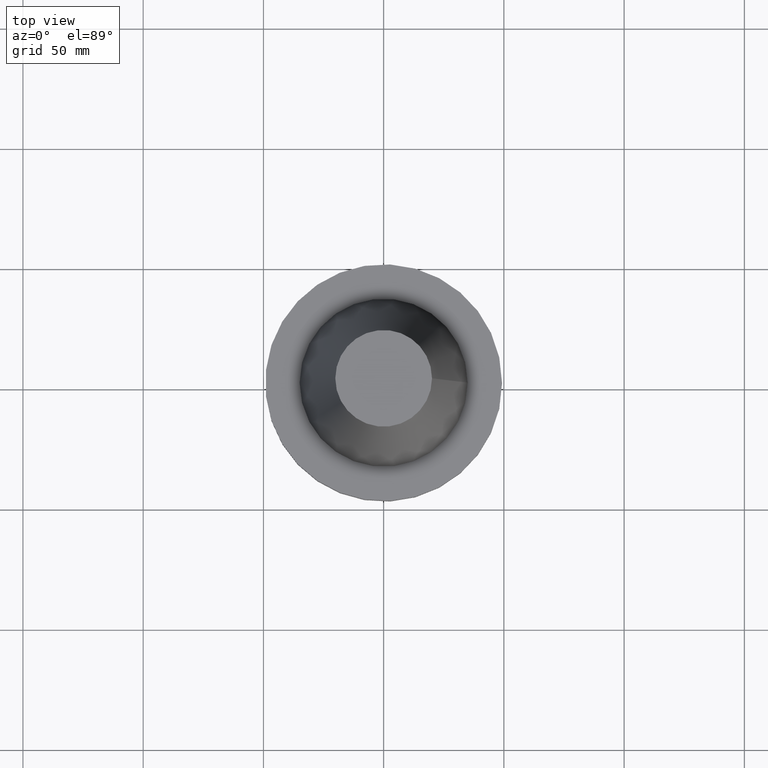
[diagram: clean part render]
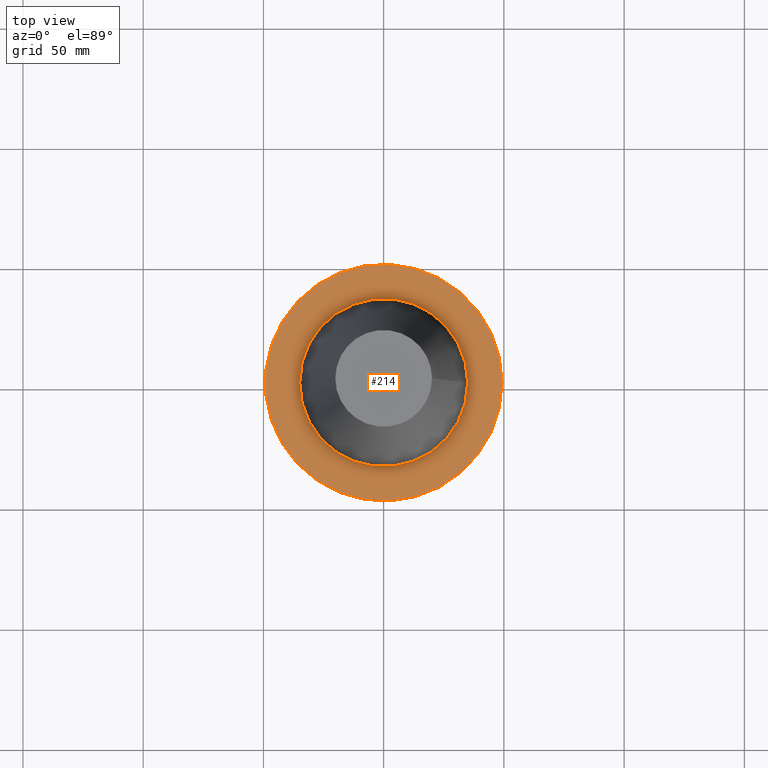
[diagram: same view with one face highlighted and labeled with its STEP entity id]
A machine part, top view. The second image highlights one B-rep face of the part: STEP entity #214.
In plain terms, the highlighted planar face has unit normal (0, 0, -1).
Its self-contained STEP definition (entity closure, byte-faithful):
#3 = VERTEX_POINT ( 'NONE', #122 ) ;
#47 = PLANE ( 'NONE',  #211 ) ;
#62 = CARTESIAN_POINT ( 'NONE',  ( 0.000000000000000000, 0.000000000000000000, -1.499999999999987566 ) ) ;
#76 = AXIS2_PLACEMENT_3D ( 'NONE', #183, #336, #390 ) ;
#98 = CARTESIAN_POINT ( 'NONE',  ( 49.21499999999999631, 0.000000000000000000, -1.499999999999987566 ) ) ;
#99 = EDGE_CURVE ( 'NONE', #3, #3, #244, .T. ) ;
#122 = CARTESIAN_POINT ( 'NONE',  ( 34.92499999999999005, 0.000000000000000000, -1.499999999999987566 ) ) ;
#141 = FACE_BOUND ( 'NONE', #240, .T. ) ;
#166 = DIRECTION ( 'NONE',  ( 1.000000000000000000, 0.000000000000000000, 0.000000000000000000 ) ) ;
#168 = DIRECTION ( 'NONE',  ( -0.000000000000000000, -0.000000000000000000, 1.000000000000000000 ) ) ;
#169 = VERTEX_POINT ( 'NONE', #98 ) ;
#177 = CARTESIAN_POINT ( 'NONE',  ( 0.000000000000000000, 49.21499999999999631, -1.499999999999992895 ) ) ;
#183 = CARTESIAN_POINT ( 'NONE',  ( 0.000000000000000000, 0.000000000000000000, -1.499999999999987566 ) ) ;
#208 = ORIENTED_EDGE ( 'NONE', *, *, #99, .F. ) ;
#211 = AXIS2_PLACEMENT_3D ( 'NONE', #177, #270, #217 ) ;
#214 = ADVANCED_FACE ( 'NONE', ( #141, #262 ), #47, .F. ) ;
#217 = DIRECTION ( 'NONE',  ( -1.000000000000000000, 0.000000000000000000, -0.000000000000000000 ) ) ;
#240 = EDGE_LOOP ( 'NONE', ( #208 ) ) ;
#244 = CIRCLE ( 'NONE', #366, 34.92499999999999005 ) ;
#256 = CIRCLE ( 'NONE', #76, 49.21499999999999631 ) ;
#258 = EDGE_CURVE ( 'NONE', #169, #169, #256, .T. ) ;
#262 = FACE_OUTER_BOUND ( 'NONE', #346, .T. ) ;
#270 = DIRECTION ( 'NONE',  ( 0.000000000000000000, 0.000000000000000000, -1.000000000000000000 ) ) ;
#291 = ORIENTED_EDGE ( 'NONE', *, *, #258, .T. ) ;
#336 = DIRECTION ( 'NONE',  ( -0.000000000000000000, -0.000000000000000000, 1.000000000000000000 ) ) ;
#346 = EDGE_LOOP ( 'NONE', ( #291 ) ) ;
#366 = AXIS2_PLACEMENT_3D ( 'NONE', #62, #168, #166 ) ;
#390 = DIRECTION ( 'NONE',  ( 1.000000000000000000, 0.000000000000000000, 0.000000000000000000 ) ) ;